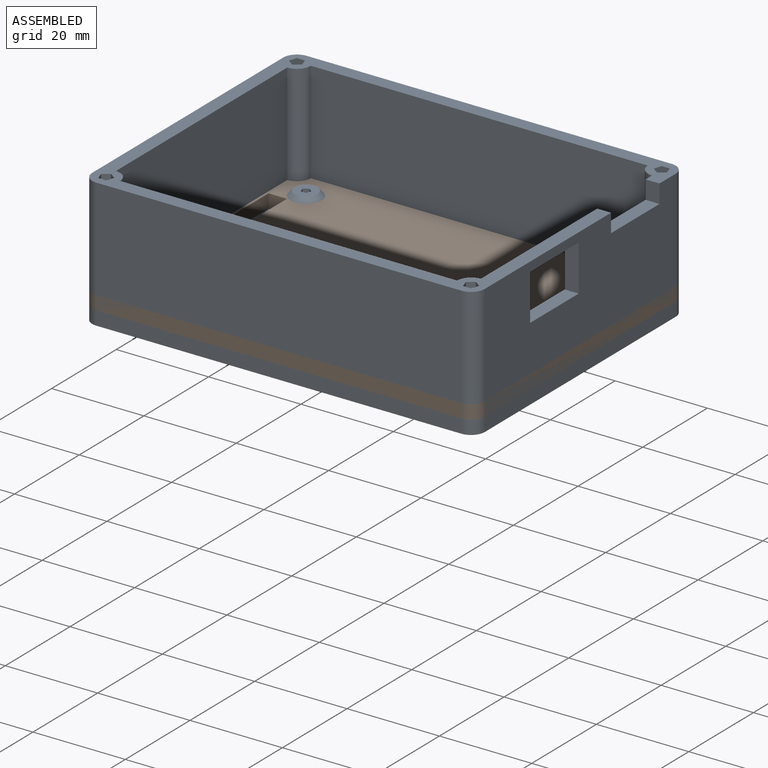
[diagram: assembled view]
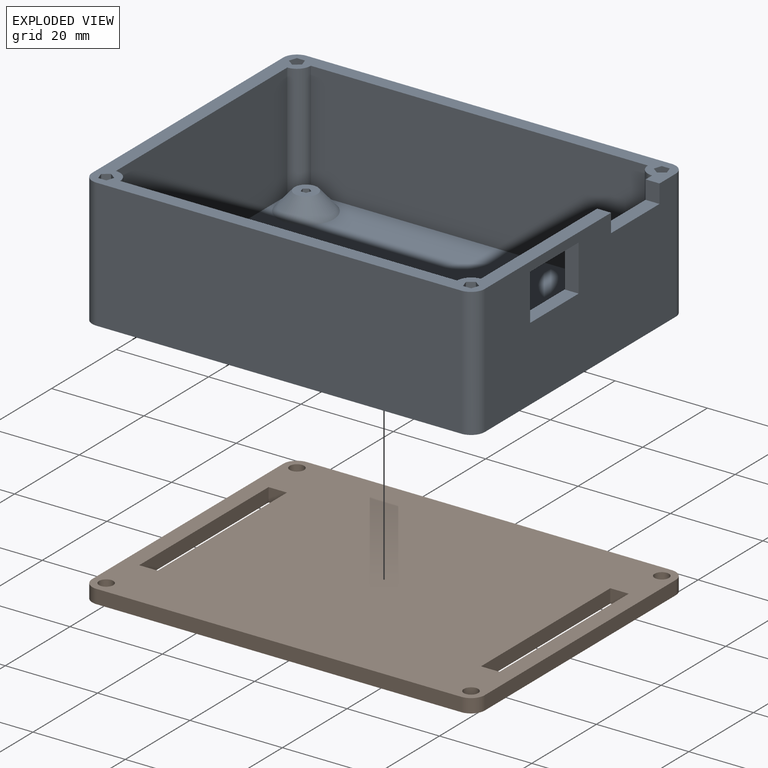
[diagram: exploded view]
GUIDED TOUR — FREECAD ASSEMBLY "boiler_monitor_case"

This assembly has 2 components, labeled P0..P1 below (a component is one placed body or linked part; the same part can appear more than once), held together by 0 modeled joints plus 1 derived contact edge. A joint is a constraint between two components; its type names the relative motion it leaves free:
  CONTACT — a derived adjacency edge — the two components touch in the source model (clearance under 2% of the assembly's diagonal); it is measured from the geometry, not a modeled constraint.
Axis/direction vectors are unit vectors and 'through' points are millimeter coordinates, both in the assembly's world frame.

MATES
  1. CONTACT "contact_0_1": P0 <-> P1, contact direction (0.000, 0.000, -1.000) through (42.50, 29.50, 0.00) mm (derived from contact, not a modeled constraint)

ASSEMBLY ORDER
  1. P0 — the base component [order verified]
  2. P1 [order verified]
Order-tag legend:
  [order verified] — this step's position reverses a verified removal order: the component was checked to insert without passing through the ones already placed.

Of the 2 components, 2 carry a construction recipe — the FreeCAD feature program (sketches with constraints, then the solid features that consume them) that regenerates the part from scratch, quoted from this document or from the linked companion document it references; the rest are supplied as boundary geometry only. The tour below walks the components in assembly order: each is shown spotlighted twice — in the assembled view, then in the exploded view, where a leader line traces a displaced component back to its assembled socket (components that stay in place when exploded have no leader line; saturated green if recipe-attached, orange if geometry-only; every other component desaturated gray) — followed by its recipe or geometry summary and the mates that hold it.
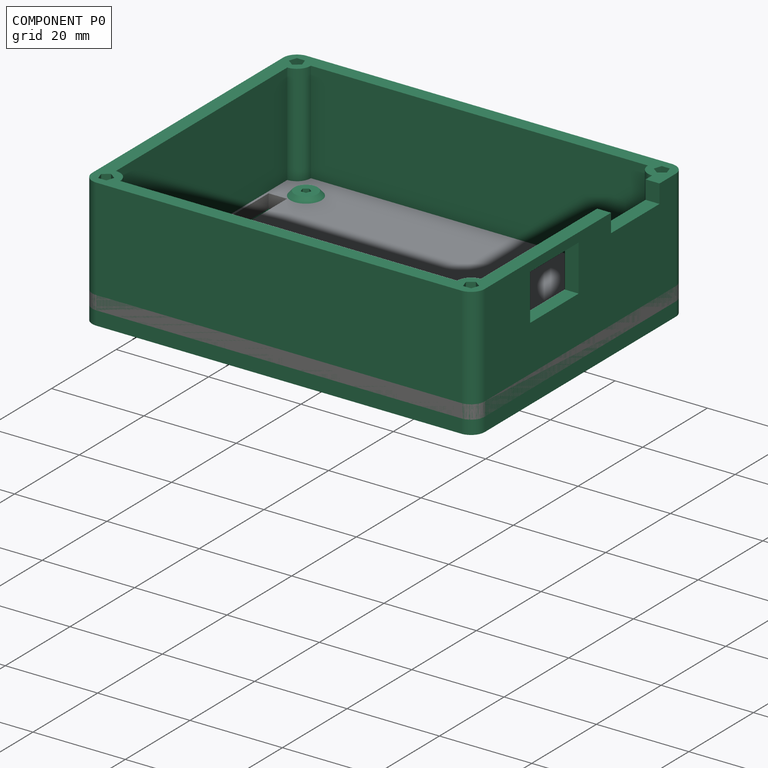
[diagram: component P0 — assembled]
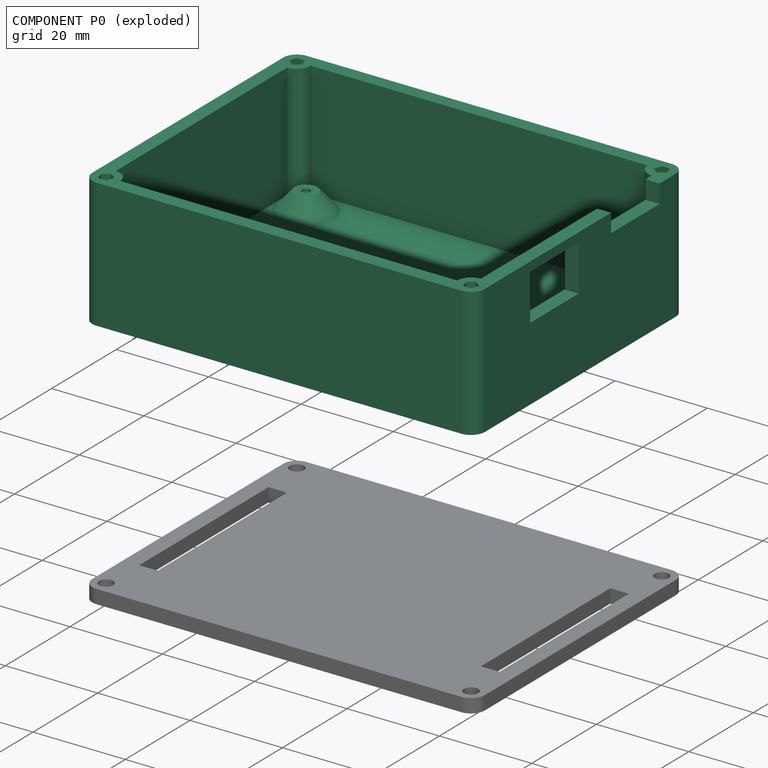
[diagram: component P0 — exploded]
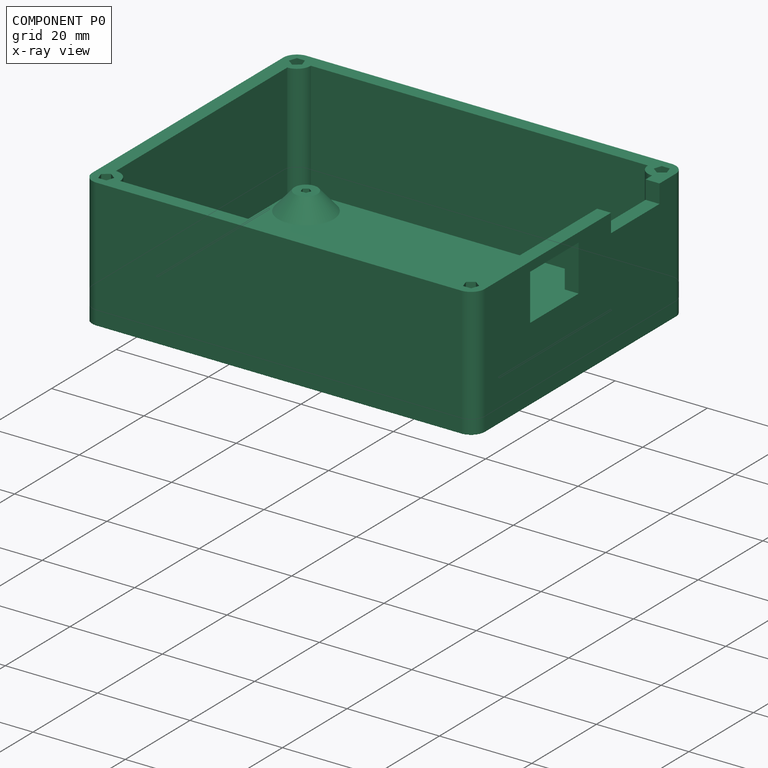
[diagram: component P0 — x-ray view]
COMPONENT P0 — recipe-attached ("Case", modeled in this document).
Held by: resting contact with P1 (derived edge).
Construction recipe (the document's own serialized feature program — sketch geometry with constraints, then the solid features built on it; lengths are millimeters unless a unit is written):

FEATURE [PartDesign::Plane] DatumPlane  label="Case_Plane_Bottom"
  AttachmentOffset = pos=(0,0,-3) rot=(0,0,1;0rad)
  Length = 99.8661
  MapMode = 5
  Placement = pos=(0,0,-3) rot=(0,0,1;0rad)
  ResizeMode = 0
  Support = -> [XY_Plane001]
  Width = 79.8661
FEATURE [Sketcher::SketchObject] Sketch  label="Case_S_Outer"
  FullyConstrained = true
  MapMode = 5
  Placement = pos=(0,0,-3) rot=(0,0,1;0rad)
  Support = -> [DatumPlane]
  sketch-geometry (8):
    g0: LineSegment StartX=-39.5 StartY=32.5 StartZ=0 EndX=39.5 EndY=32.5 EndZ=0
    g1: LineSegment StartX=42.5 StartY=29.5 StartZ=0 EndX=42.5 EndY=-29.5 EndZ=0
    g2: LineSegment StartX=39.5 StartY=-32.5 StartZ=0 EndX=-39.5 EndY=-32.5 EndZ=0
    g3: LineSegment StartX=-42.5 StartY=-29.5 StartZ=0 EndX=-42.5 EndY=29.5 EndZ=0
    g4: ArcOfCircle CenterX=39.5 CenterY=29.5 CenterZ=0 NormalX=0 NormalY=0 NormalZ=1 AngleXU=0 Radius=3 StartAngle=-1.8527e-12 EndAngle=1.5708
    g5: ArcOfCircle CenterX=-39.5 CenterY=29.5 CenterZ=0 NormalX=0 NormalY=0 NormalZ=1 AngleXU=0 Radius=3 StartAngle=1.5708 EndAngle=3.14159
    g6: ArcOfCircle CenterX=-39.5 CenterY=-29.5 CenterZ=0 NormalX=0 NormalY=0 NormalZ=1 AngleXU=0 Radius=3 StartAngle=3.14159 EndAngle=4.71239
    g7: ArcOfCircle CenterX=39.5 CenterY=-29.5 CenterZ=0 NormalX=0 NormalY=0 NormalZ=1 AngleXU=0 Radius=3 StartAngle=4.71239 EndAngle=6.28319
  constraints (17):
    c: Horizontal(g2)
    c: Vertical(g3)
    c: Tangent(g0,g4) = 1.5708
    c: Tangent(g1,g4) = 1.5708
    c: Tangent(g0,g5) = 1.5708
    c: Tangent(g3,g5) = 1.5708
    c: Tangent(g3,g6) = 1.5708
    c: Tangent(g2,g6) = 1.5708
    c: Tangent(g2,g7) = 1.5708
    c: Tangent(g1,g7) = 1.5708
    c: DistanceY(g2,g0) = 65
    c: DistanceX(g3,g1) = 85
    c: Equal(g5,g4)
    c: Symmetric(g5,g6,g-1)
    c: Symmetric(g5,g4,g-2)
    c: Radius(g7) = 3  'wall'
    c: Symmetric(g7,g4,g-1)
FEATURE [PartDesign::Plane] DatumPlane001  label="Case_Plane_Top"
  AttachmentOffset = pos=(0,0,25) rot=(0,0,1;0rad)
  Length = 99.8661
  MapMode = 5
  Placement = pos=(0,0,25) rot=(0,0,1;0rad)
  ResizeMode = 0
  Support = -> [XY_Plane001]
  Width = 79.8661
FEATURE [PartDesign::CoordinateSystem] LCS_0  label="Case_LCS_Top"
  AttacherType = Attacher::AttachEngine3D
  MapMode = 2
  Placement = pos=(0,0,25) rot=(0,0,1;0rad)
  Support = -> [DatumPlane001]
FEATURE [PartDesign::Pad] Pad  label="Case_Outer"
  Direction = (1,1,1)
  Length = 10
  Length2 = 100
  Placement = pos=(0,0,-3) rot=(0,0,1;0rad)
  Profile = -> Sketch
  Type = 3
  UpToFace = -> DatumPlane001 [Plane]
FEATURE [Sketcher::SketchObject] Sketch001  label="Case_S_Inner"
  FullyConstrained = true
  MapMode = 5
  Placement = pos=(0,0,25) rot=(0,0,1;0rad)
  Support = -> [DatumPlane001]
  expr: Constraints[23] = Sketch.Constraints.wall
  expr: Constraints[19] = Sketch.Constraints[11]
  expr: Constraints[18] = Sketch.Constraints[10]
  sketch-geometry (12):
    g0: LineSegment StartX=39.5 StartY=-29.5 StartZ=0 EndX=-39.5 EndY=-29.5 EndZ=0
    g1: LineSegment StartX=-39.5 StartY=-29.5 StartZ=0 EndX=-39.5 EndY=29.5 EndZ=0
    g2: LineSegment StartX=-39.5 StartY=29.5 StartZ=0 EndX=39.5 EndY=29.5 EndZ=0
    g3: LineSegment StartX=39.5 StartY=29.5 StartZ=0 EndX=39.5 EndY=-29.5 EndZ=0
    g4: LineSegment StartX=-39.5 StartY=32.5 StartZ=0 EndX=39.5 EndY=32.5 EndZ=0
    g5: LineSegment StartX=42.5 StartY=29.5 StartZ=0 EndX=42.5 EndY=-29.5 EndZ=0
    g6: LineSegment StartX=39.5 StartY=-32.5 StartZ=0 EndX=-39.5 EndY=-32.5 EndZ=0
    g7: LineSegment StartX=-42.5 StartY=-29.5 StartZ=0 EndX=-42.5 EndY=29.5 EndZ=0
    g8: ArcOfCircle CenterX=39.5 CenterY=29.5 CenterZ=0 NormalX=0 NormalY=0 NormalZ=1 AngleXU=0 Radius=3 StartAngle=0 EndAngle=1.5708
    g9: ArcOfCircle CenterX=-39.5 CenterY=29.5 CenterZ=0 NormalX=0 NormalY=0 NormalZ=1 AngleXU=0 Radius=3 StartAngle=1.5708 EndAngle=3.14159
    g10: ArcOfCircle CenterX=-39.5 CenterY=-29.5 CenterZ=0 NormalX=0 NormalY=0 NormalZ=1 AngleXU=0 Radius=3 StartAngle=3.14159 EndAngle=4.71239
    g11: ArcOfCircle CenterX=39.5 CenterY=-29.5 CenterZ=0 NormalX=0 NormalY=0 NormalZ=1 AngleXU=0 Radius=3 StartAngle=4.71239 EndAngle=6.28319
  constraints (26):
    c: Coincident(g0,g1)
    c: Coincident(g1,g2)
    c: Coincident(g2,g3)
    c: Coincident(g3,g0)
    c: Horizontal(g2)
    c: Vertical(g3)
    c: Symmetric(g0,g0,g-2)
    c: Symmetric(g0,g1,g-1)
    c: Horizontal(g6)
    c: Vertical(g7)
    c: Tangent(g4,g8) = 1.5708
    c: Tangent(g5,g8) = 1.5708
    c: Tangent(g4,g9) = 1.5708
    c: Tangent(g7,g9) = 1.5708
    c: Tangent(g7,g10) = 1.5708
    c: Tangent(g6,g10) = 1.5708
    c: Tangent(g6,g11) = 1.5708
    c: Tangent(g5,g11) = 1.5708
    c: DistanceY(g6,g4) = 65
    c: DistanceX(g7,g5) = 85
    c: Equal(g9,g8)
    c: Symmetric(g9,g10,g-1)
    c: Symmetric(g9,g8,g-2)
    c: Radius(g11) = 3
    c: Symmetric(g11,g8,g-1)
    c: Coincident(g1,g9)
FEATURE [PartDesign::Pocket] Pocket  label="Case_Inner"
  BaseFeature = -> Pad
  Length = 0
  Length2 = 100
  Placement = pos=(0,0,-3) rot=(0,0,1;0rad)
  Profile = -> Sketch001
  Type = 3
  UpToFace = -> XY_Plane001
FEATURE [Sketcher::SketchObject] Sketch002  label="Case_S_MountSupports"
  FullyConstrained = true
  MapMode = 5
  Placement = pos=(0,0,25) rot=(0,0,1;0rad)
  Support = -> [DatumPlane001]
  expr: Constraints[23] = Sketch001.Constraints[23]
  expr: Constraints[19] = Sketch001.Constraints[19]
  expr: Constraints[18] = Sketch001.Constraints[18]
  sketch-geometry (16):
    g0: LineSegment StartX=39.5 StartY=-29.5 StartZ=0 EndX=-39.5 EndY=-29.5 EndZ=0
    g1: LineSegment StartX=-39.5 StartY=-29.5 StartZ=0 EndX=-39.5 EndY=29.5 EndZ=0
    g2: LineSegment StartX=-39.5 StartY=29.5 StartZ=0 EndX=39.5 EndY=29.5 EndZ=0
    g3: LineSegment StartX=39.5 StartY=29.5 StartZ=0 EndX=39.5 EndY=-29.5 EndZ=0
    g4: LineSegment StartX=-39.5 StartY=32.5 StartZ=0 EndX=39.5 EndY=32.5 EndZ=0
    g5: LineSegment StartX=42.5 StartY=29.5 StartZ=0 EndX=42.5 EndY=-29.5 EndZ=0
    g6: LineSegment StartX=39.5 StartY=-32.5 StartZ=0 EndX=-39.5 EndY=-32.5 EndZ=0
    g7: LineSegment StartX=-42.5 StartY=-29.5 StartZ=0 EndX=-42.5 EndY=29.5 EndZ=0
    g8: ArcOfCircle CenterX=39.5 CenterY=29.5 CenterZ=0 NormalX=0 NormalY=0 NormalZ=1 AngleXU=0 Radius=3 StartAngle=0 EndAngle=1.5708
    g9: ArcOfCircle CenterX=-39.5 CenterY=29.5 CenterZ=0 NormalX=0 NormalY=0 NormalZ=1 AngleXU=0 Radius=3 StartAngle=1.5708 EndAngle=3.14159
    g10: ArcOfCircle CenterX=-39.5 CenterY=-29.5 CenterZ=0 NormalX=0 NormalY=0 NormalZ=1 AngleXU=0 Radius=3 StartAngle=3.14159 EndAngle=4.71239
    g11: ArcOfCircle CenterX=39.5 CenterY=-29.5 CenterZ=0 NormalX=0 NormalY=0 NormalZ=1 AngleXU=0 Radius=3 StartAngle=4.71239 EndAngle=6.28319
    g12: Circle CenterX=-39.5 CenterY=29.5 CenterZ=0 NormalX=0 NormalY=0 NormalZ=1 AngleXU=0 Radius=3
    g13: Circle CenterX=39.5 CenterY=29.5 CenterZ=0 NormalX=0 NormalY=0 NormalZ=1 AngleXU=0 Radius=3
    g14: Circle CenterX=39.5 CenterY=-29.5 CenterZ=0 NormalX=0 NormalY=0 NormalZ=1 AngleXU=0 Radius=3
    g15: Circle CenterX=-39.5 CenterY=-29.5 CenterZ=0 NormalX=0 NormalY=0 NormalZ=1 AngleXU=0 Radius=3
  constraints (34):
    c: Coincident(g0,g1)
    c: Coincident(g1,g2)
    c: Coincident(g2,g3)
    c: Coincident(g3,g0)
    c: Horizontal(g2)
    c: Vertical(g3)
    c: Symmetric(g0,g0,g-2)
    c: Symmetric(g0,g1,g-1)
    c: Horizontal(g6)
    c: Vertical(g7)
    c: Tangent(g4,g8) = 1.5708
    c: Tangent(g5,g8) = 1.5708
    c: Tangent(g4,g9) = 1.5708
    c: Tangent(g7,g9) = 1.5708
    c: Tangent(g7,g10) = 1.5708
    c: Tangent(g6,g10) = 1.5708
    c: Tangent(g6,g11) = 1.5708
    c: Tangent(g5,g11) = 1.5708
    c: DistanceY(g6,g4) = 65
    c: DistanceX(g7,g5) = 85
    c: Equal(g9,g8)
    c: Symmetric(g9,g10,g-1)
    c: Symmetric(g9,g8,g-2)
    c: Radius(g11) = 3
    c: Symmetric(g11,g8,g-1)
    c: Coincident(g1,g9)
    c: Coincident(g12,g1)
    c: PointOnObject(g4,g12)
    c: Coincident(g13,g2)
    c: PointOnObject(g4,g13)
    c: Coincident(g14,g0)
    c: PointOnObject(g6,g14)
    c: Coincident(g15,g0)
    c: PointOnObject(g6,g15)
FEATURE [PartDesign::Pad] Pad001  label="Case_MountSupports"
  BaseFeature = -> Pocket
  Direction = (1,1,1)
  Length = 10
  Length2 = 100
  Placement = pos=(0,0,-3) rot=(0,0,1;0rad)
  Profile = -> Sketch002
  Type = 3
  UpToFace = -> XY_Plane001
FEATURE [Sketcher::SketchObject] Sketch003  label="Case_S_Mount"
  FullyConstrained = true
  MapMode = 5
  Placement = pos=(0,0,25) rot=(0,0,1;0rad)
  Support = -> [DatumPlane001]
  expr: Constraints[23] = Sketch001.Constraints[23]
  expr: Constraints[19] = Sketch001.Constraints[19]
  expr: Constraints[18] = Sketch001.Constraints[18]
  sketch-geometry (36):
    g0: LineSegment StartX=39.5 StartY=-29.5 StartZ=0 EndX=-39.5 EndY=-29.5 EndZ=0
    g1: LineSegment StartX=-39.5 StartY=-29.5 StartZ=0 EndX=-39.5 EndY=29.5 EndZ=0
    g2: LineSegment StartX=-39.5 StartY=29.5 StartZ=0 EndX=39.5 EndY=29.5 EndZ=0
    g3: LineSegment StartX=39.5 StartY=29.5 StartZ=0 EndX=39.5 EndY=-29.5 EndZ=0
    g4: LineSegment StartX=-39.5 StartY=32.5 StartZ=0 EndX=39.5 EndY=32.5 EndZ=0
    g5: LineSegment StartX=42.5 StartY=29.5 StartZ=0 EndX=42.5 EndY=-29.5 EndZ=0
    g6: LineSegment StartX=39.5 StartY=-32.5 StartZ=0 EndX=-39.5 EndY=-32.5 EndZ=0
    g7: LineSegment StartX=-42.5 StartY=-29.5 StartZ=0 EndX=-42.5 EndY=29.5 EndZ=0
    g8: ArcOfCircle CenterX=39.5 CenterY=29.5 CenterZ=0 NormalX=0 NormalY=0 NormalZ=1 AngleXU=0 Radius=3 StartAngle=-9e-16 EndAngle=1.5708
    g9: ArcOfCircle CenterX=-39.5 CenterY=29.5 CenterZ=0 NormalX=0 NormalY=0 NormalZ=1 AngleXU=0 Radius=3 StartAngle=1.5708 EndAngle=3.14159
    g10: ArcOfCircle CenterX=-39.5 CenterY=-29.5 CenterZ=0 NormalX=0 NormalY=0 NormalZ=1 AngleXU=0 Radius=3 StartAngle=3.14159 EndAngle=4.71239
    g11: ArcOfCircle CenterX=39.5 CenterY=-29.5 CenterZ=0 NormalX=0 NormalY=0 NormalZ=1 AngleXU=0 Radius=3 StartAngle=4.71239 EndAngle=6.28319
    g12: LineSegment StartX=-38.0734 StartY=29.0365 StartZ=0 EndX=-38.6183 EndY=30.7135 EndZ=0
    g13: LineSegment StartX=-38.6183 StartY=30.7135 StartZ=0 EndX=-40.3817 EndY=30.7135 EndZ=0
    g14: LineSegment StartX=-40.3817 StartY=30.7135 StartZ=0 EndX=-40.9266 EndY=29.0365 EndZ=0
    g15: LineSegment StartX=-40.9266 StartY=29.0365 StartZ=0 EndX=-39.5 EndY=28 EndZ=0
    g16: LineSegment StartX=-39.5 StartY=28 StartZ=0 EndX=-38.0734 EndY=29.0365 EndZ=0
    g17: Circle CenterX=-39.5 CenterY=29.5 CenterZ=0 NormalX=0 NormalY=0 NormalZ=1 AngleXU=0 Radius=1.5
    g18: LineSegment StartX=38.0734 StartY=29.0365 StartZ=0 EndX=39.5 EndY=28 EndZ=0
    g19: LineSegment StartX=39.5 StartY=28 StartZ=0 EndX=40.9266 EndY=29.0365 EndZ=0
    g20: LineSegment StartX=40.9266 StartY=29.0365 StartZ=0 EndX=40.3817 EndY=30.7135 EndZ=0
    g21: LineSegment StartX=40.3817 StartY=30.7135 StartZ=0 EndX=38.6183 EndY=30.7135 EndZ=0
    g22: LineSegment StartX=38.6183 StartY=30.7135 StartZ=0 EndX=38.0734 EndY=29.0365 EndZ=0
    g23: Circle CenterX=39.5 CenterY=29.5 CenterZ=0 NormalX=0 NormalY=0 NormalZ=1 AngleXU=0 Radius=1.5
    g24: LineSegment StartX=40.9266 StartY=-29.0365 StartZ=0 EndX=39.5 EndY=-28 EndZ=0
    g25: LineSegment StartX=39.5 StartY=-28 StartZ=0 EndX=38.0734 EndY=-29.0365 EndZ=0
    g26: LineSegment StartX=38.0734 StartY=-29.0365 StartZ=0 EndX=38.6183 EndY=-30.7135 EndZ=0
    g27: LineSegment StartX=38.6183 StartY=-30.7135 StartZ=0 EndX=40.3817 EndY=-30.7135 EndZ=0
    g28: LineSegment StartX=40.3817 StartY=-30.7135 StartZ=0 EndX=40.9266 EndY=-29.0365 EndZ=0
    g29: Circle CenterX=39.5 CenterY=-29.5 CenterZ=0 NormalX=0 NormalY=0 NormalZ=1 AngleXU=0 Radius=1.5
    g30: LineSegment StartX=-39.5 StartY=-28 StartZ=0 EndX=-40.9266 EndY=-29.0365 EndZ=0
    g31: LineSegment StartX=-40.9266 StartY=-29.0365 StartZ=0 EndX=-40.3817 EndY=-30.7135 EndZ=0
    g32: LineSegment StartX=-40.3817 StartY=-30.7135 StartZ=0 EndX=-38.6183 EndY=-30.7135 EndZ=0
    g33: LineSegment StartX=-38.6183 StartY=-30.7135 StartZ=0 EndX=-38.0734 EndY=-29.0365 EndZ=0
    g34: LineSegment StartX=-38.0734 StartY=-29.0365 StartZ=0 EndX=-39.5 EndY=-28 EndZ=0
    g35: Circle CenterX=-39.5 CenterY=-29.5 CenterZ=0 NormalX=0 NormalY=0 NormalZ=1 AngleXU=0 Radius=1.5
  constraints (82):
    c: Coincident(g0,g1)
    c: Coincident(g1,g2)
    c: Coincident(g2,g3)
    c: Coincident(g3,g0)
    c: Horizontal(g2)
    c: Vertical(g3)
    c: Symmetric(g0,g0,g-2)
    c: Symmetric(g0,g1,g-1)
    c: Horizontal(g6)
    c: Vertical(g7)
    c: Tangent(g4,g8) = 1.5708
    c: Tangent(g5,g8) = 1.5708
    c: Tangent(g4,g9) = 1.5708
    c: Tangent(g7,g9) = 1.5708
    c: Tangent(g7,g10) = 1.5708
    c: Tangent(g6,g10) = 1.5708
    c: Tangent(g6,g11) = 1.5708
    c: Tangent(g5,g11) = 1.5708
    c: DistanceY(g6,g4) = 65
    c: DistanceX(g7,g5) = 85
    c: Equal(g9,g8)
    c: Symmetric(g9,g10,g-1)
    c: Symmetric(g9,g8,g-2)
    c: Radius(g11) = 3
    c: Symmetric(g11,g8,g-1)
    c: Coincident(g1,g9)
    c: Coincident(g12,g13)
    c: Coincident(g13,g14)
    c: Coincident(g14,g15)
    c: Coincident(g15,g16)
    c: Coincident(g16,g12)
    c: Equal(g12, g13-g16) x4
    c: PointOnObject(g12,g17)
    c: PointOnObject(g13,g17)
    c: PointOnObject(g14,g17)
    c: PointOnObject(g15,g17)
    c: PointOnObject(g16,g17)
    c: Coincident(g17,g1)
    c: Coincident(g18,g19)
    c: Coincident(g19,g20)
    c: Coincident(g20,g21)
    c: Coincident(g21,g22)
    c: Coincident(g22,g18)
    c: Equal(g18, g19-g22) x4
    c: PointOnObject(g18,g23)
    c: PointOnObject(g19,g23)
    c: PointOnObject(g20,g23)
    c: PointOnObject(g21,g23)
    c: PointOnObject(g22,g23)
    c: Coincident(g23,g2)
    c: Coincident(g24,g25)
    c: Coincident(g25,g26)
    c: Coincident(g26,g27)
    c: Coincident(g27,g28)
    c: Coincident(g28,g24)
    c: Equal(g24, g25-g28) x4
    c: PointOnObject(g24,g29)
    c: PointOnObject(g25,g29)
    c: PointOnObject(g26,g29)
    c: PointOnObject(g27,g29)
    c: PointOnObject(g28,g29)
    c: Coincident(g29,g0)
    c: Coincident(g30,g31)
    c: Coincident(g31,g32)
    c: Coincident(g32,g33)
    c: Coincident(g33,g34)
    c: Coincident(g34,g30)
    c: Equal(g30, g31-g34) x4
    c: PointOnObject(g30,g35)
    c: PointOnObject(g31,g35)
    c: PointOnObject(g32,g35)
    c: PointOnObject(g33,g35)
    c: PointOnObject(g34,g35)
    c: Coincident(g35,g0)
    c: Equal(g17,g23)
    c: Equal(g23,g29)
    c: Equal(g29,g35)
    c: Diameter(g35) = 3
    c: PointOnObject(g15,g1)
    c: PointOnObject(g30,g1)
    c: PointOnObject(g24,g3)
    c: PointOnObject(g18,g3)
FEATURE [PartDesign::Pocket] Pocket001  label="Case_Mount"
  BaseFeature = -> Pad001
  Length = 0
  Length2 = 100
  Placement = pos=(0,0,-3) rot=(0,0,1;0rad)
  Profile = -> Sketch003
  Type = 3
  UpToFace = -> XY_Plane001
FEATURE [PartDesign::Plane] DatumPlane002  label="Case_Plane_PcbStandoffs"
  AttachmentOffset = pos=(0,0,4) rot=(0,0,1;0rad)
  Length = 99.8661
  MapMode = 5
  Placement = pos=(0,0,4) rot=(0,0,1;0rad)
  ResizeMode = 0
  Support = -> [XY_Plane001]
  Width = 79.8661
FEATURE [Sketcher::SketchObject] Sketch005  label="Case_S_PcbStandoffUpper"
  AttachmentOffset = pos=(-33,-23,0) rot=(0,0,1;0rad)
  FullyConstrained = true
  MapMode = 5
  Placement = pos=(-33,-23,4) rot=(0,0,1;0rad)
  Support = -> [DatumPlane002]
  sketch-geometry (1):
    g0: Circle CenterX=0 CenterY=0 CenterZ=0 NormalX=0 NormalY=0 NormalZ=1 AngleXU=0 Radius=2.5
  constraints (2):
    c: Coincident(g0,g-1)
    c: Diameter(g0) = 5
FEATURE [Sketcher::SketchObject] Sketch006  label="Case_S_PcbStandoffLower"
  AttachmentOffset = pos=(-33,-23,0) rot=(0,0,1;0rad)
  FullyConstrained = true
  MapMode = 5
  Placement = pos=(-33,-23,0) rot=(0,0,1;0rad)
  Support = -> [XY_Plane001]
  sketch-geometry (1):
    g0: Circle CenterX=0 CenterY=0 CenterZ=0 NormalX=0 NormalY=0 NormalZ=1 AngleXU=0 Radius=6
  constraints (2):
    c: Coincident(g0,g-1)
    c: Diameter(g0) = 12
FEATURE [PartDesign::AdditiveLoft] AdditiveLoft  label="Case_PcbStandoff"
  BaseFeature = -> Pocket001
  Closed = false
  Placement = pos=(0,0,-3) rot=(0,0,1;0rad)
  Profile = -> Sketch005
  Ruled = false
  Sections = -> [Sketch006]
FEATURE [PartDesign::LinearPattern] LinearPattern  label="Case_Trans_PcbStandoffsX"
  Direction = -> Sketch005 [H_Axis]
  Length = 66
  Occurrences = 2
  Placement = pos=(0,0,-3) rot=(0,0,1;0rad)
FEATURE [PartDesign::LinearPattern] LinearPattern001  label="Case_Trans_PcbStandoffsY"
  Direction = -> Sketch005 [V_Axis]
  Length = 46
  Occurrences = 2
  Placement = pos=(0,0,-3) rot=(0,0,1;0rad)
FEATURE [PartDesign::MultiTransform] MultiTransform  label="Case_PcbStandoffs"
  BaseFeature = -> AdditiveLoft
  Originals = -> [AdditiveLoft]
  Placement = pos=(0,0,-3) rot=(0,0,1;0rad)
  Transformations = -> [LinearPattern,LinearPattern001]
FEATURE [Sketcher::SketchObject] Sketch007  label="Case_S_PcbMountingHoles"
  ExternalGeometry = -> [MultiTransform]
  FullyConstrained = true
  MapMode = 5
  Placement = pos=(0,0,4) rot=(0,0,1;0rad)
  Support = -> [DatumPlane002]
  sketch-geometry (24):
    g0: LineSegment StartX=-33.5878 StartY=22.191 StartZ=0 EndX=-32.4122 EndY=22.191 EndZ=0
    g1: LineSegment StartX=-32.4122 StartY=22.191 StartZ=0 EndX=-32.0489 EndY=23.309 EndZ=0
    g2: LineSegment StartX=-32.0489 StartY=23.309 StartZ=0 EndX=-33 EndY=24 EndZ=0
    g3: LineSegment StartX=-33 StartY=24 StartZ=0 EndX=-33.9511 EndY=23.309 EndZ=0
    g4: LineSegment StartX=-33.9511 StartY=23.309 StartZ=0 EndX=-33.5878 EndY=22.191 EndZ=0
    g5: Circle CenterX=-33 CenterY=23 CenterZ=0 NormalX=0 NormalY=0 NormalZ=1 AngleXU=0 Radius=1
    g6: LineSegment StartX=33 StartY=24 StartZ=0 EndX=32.0489 EndY=23.309 EndZ=0
    g7: LineSegment StartX=32.0489 StartY=23.309 StartZ=0 EndX=32.4122 EndY=22.191 EndZ=0
    g8: LineSegment StartX=32.4122 StartY=22.191 StartZ=0 EndX=33.5878 EndY=22.191 EndZ=0
    g9: LineSegment StartX=33.5878 StartY=22.191 StartZ=0 EndX=33.9511 EndY=23.309 EndZ=0
    g10: LineSegment StartX=33.9511 StartY=23.309 StartZ=0 EndX=33 EndY=24 EndZ=0
    g11: Circle CenterX=33 CenterY=23 CenterZ=0 NormalX=0 NormalY=0 NormalZ=1 AngleXU=0 Radius=1
    g12: LineSegment StartX=-33.9511 StartY=-22.691 StartZ=0 EndX=-33.5878 EndY=-23.809 EndZ=0
    g13: LineSegment StartX=-33.5878 StartY=-23.809 StartZ=0 EndX=-32.4122 EndY=-23.809 EndZ=0
    g14: LineSegment StartX=-32.4122 StartY=-23.809 StartZ=0 EndX=-32.0489 EndY=-22.691 EndZ=0
    g15: LineSegment StartX=-32.0489 StartY=-22.691 StartZ=0 EndX=-33 EndY=-22 EndZ=0
    g16: LineSegment StartX=-33 StartY=-22 StartZ=0 EndX=-33.9511 EndY=-22.691 EndZ=0
    g17: Circle CenterX=-33 CenterY=-23 CenterZ=0 NormalX=0 NormalY=0 NormalZ=1 AngleXU=0 Radius=1
    g18: LineSegment StartX=33.9511 StartY=-22.691 StartZ=0 EndX=33 EndY=-22 EndZ=0
    g19: LineSegment StartX=33 StartY=-22 StartZ=0 EndX=32.0489 EndY=-22.691 EndZ=0
    g20: LineSegment StartX=32.0489 StartY=-22.691 StartZ=0 EndX=32.4122 EndY=-23.809 EndZ=0
    g21: LineSegment StartX=32.4122 StartY=-23.809 StartZ=0 EndX=33.5878 EndY=-23.809 EndZ=0
    g22: LineSegment StartX=33.5878 StartY=-23.809 StartZ=0 EndX=33.9511 EndY=-22.691 EndZ=0
    g23: Circle CenterX=33 CenterY=-23 CenterZ=0 NormalX=0 NormalY=0 NormalZ=1 AngleXU=0 Radius=1
  constraints (56):
    c: Coincident(g0,g1)
    c: Coincident(g1,g2)
    c: Coincident(g2,g3)
    c: Coincident(g3,g4)
    c: Coincident(g4,g0)
    c: Equal(g0, g1-g4) x4
    c: PointOnObject(g0,g5)
    c: PointOnObject(g1,g5)
    c: PointOnObject(g2,g5)
    c: PointOnObject(g3,g5)
    c: PointOnObject(g4,g5)
    c: Coincident(g5,g-3)
    c: Coincident(g6,g7)
    c: Coincident(g7,g8)
    c: Coincident(g8,g9)
    c: Coincident(g9,g10)
    c: Coincident(g10,g6)
    c: Equal(g6, g7-g10) x4
    c: PointOnObject(g6,g11)
    c: PointOnObject(g7,g11)
    c: PointOnObject(g8,g11)
    c: PointOnObject(g9,g11)
    c: PointOnObject(g10,g11)
    c: Coincident(g11,g-4)
    c: Coincident(g12,g13)
    c: Coincident(g13,g14)
    c: Coincident(g14,g15)
    c: Coincident(g15,g16)
    c: Coincident(g16,g12)
    c: Equal(g12, g13-g16) x4
    c: PointOnObject(g12,g17)
    c: PointOnObject(g13,g17)
    c: PointOnObject(g14,g17)
    c: PointOnObject(g15,g17)
    c: PointOnObject(g16,g17)
    c: Coincident(g17,g-6)
    c: Coincident(g18,g19)
    c: Coincident(g19,g20)
    c: Coincident(g20,g21)
    c: Coincident(g21,g22)
    c: Coincident(g22,g18)
    c: Equal(g18, g19-g22) x4
    c: PointOnObject(g18,g23)
    c: PointOnObject(g19,g23)
    c: PointOnObject(g20,g23)
    c: PointOnObject(g21,g23)
    c: PointOnObject(g22,g23)
    c: Coincident(g23,g-5)
    c: Diameter(g17) = 2
    c: Equal(g17,g5)
    c: Equal(g5,g11)
    c: Equal(g11,g23)
    c: Horizontal(g0)
    c: Horizontal(g8)
    c: Horizontal(g21)
    c: Horizontal(g13)
FEATURE [PartDesign::Pocket] Pocket002  label="Case_PcbMountingHoles"
  BaseFeature = -> MultiTransform
  Length = 6
  Length2 = 100
  Placement = pos=(0,0,-3) rot=(0,0,1;0rad)
  Profile = -> Sketch007
  Type = 0
FEATURE [Sketcher::SketchObject] Sketch008  label="Case_S_CableCutouts"
  ExternalGeometry = -> [Pocket002,DatumPlane002]
  FullyConstrained = true
  MapMode = 5
  Placement = pos=(42.5,-2.8866e-12,-3) rot=(0.57735,0.57735,0.57735;2.0944rad)
  Support = -> [Pocket002]
  expr: Constraints[30] = <<Case_Trans_PcbStandoffsY>>.Length / 2 - 15mm
  sketch-geometry (11):
    g0: LineSegment StartX=-15.5 StartY=26 StartZ=0 EndX=-0.5 EndY=26 EndZ=0
    g1: LineSegment StartX=-0.5 StartY=26 StartZ=0 EndX=-0.5 EndY=16 EndZ=0
    g2: LineSegment StartX=-0.5 StartY=16 StartZ=0 EndX=-15.5 EndY=16 EndZ=0
    g3: LineSegment StartX=-15.5 StartY=16 StartZ=0 EndX=-15.5 EndY=26 EndZ=0
    g4: LineSegment StartX=9.5 StartY=28 StartZ=0 EndX=24.5 EndY=28 EndZ=0
    g5: LineSegment StartX=24.5 StartY=28 StartZ=0 EndX=24.5 EndY=24 EndZ=0
    g6: LineSegment StartX=24.5 StartY=24 StartZ=0 EndX=9.5 EndY=24 EndZ=0
    g7: LineSegment StartX=9.5 StartY=24 StartZ=0 EndX=9.5 EndY=28 EndZ=0
    g8: LineSegment StartX=-15.5 StartY=16 StartZ=0 EndX=-15.5 EndY=7 EndZ=0
    g9: GeomPoint X=-8 Y=26 Z=0
    g10: LineSegment StartX=-8 StartY=26 StartZ=0 EndX=0 EndY=26 EndZ=0
  constraints (31):
    c: Coincident(g0,g1)
    c: Coincident(g1,g2)
    c: Coincident(g2,g3)
    c: Coincident(g3,g0)
    c: Horizontal(g0)
    c: Horizontal(g2)
    c: Vertical(g1)
    c: Vertical(g3)
    c: DistanceX(g0,g0) = 15
    c: DistanceY(g3,g3) = 10
    c: Coincident(g4,g5)
    c: Coincident(g5,g6)
    c: Coincident(g6,g7)
    c: Coincident(g7,g4)
    c: Horizontal(g4)
    c: Horizontal(g6)
    c: Vertical(g5)
    c: Vertical(g7)
    c: PointOnObject(g4,g-3)
    c: DistanceY(g7,g7) = 4
    c: DistanceX(g6,g6) = 15
    c: DistanceX(g4,g-3) = 5
    c: Coincident(g8,g2)
    c: PointOnObject(g8,g-4)
    c: Vertical(g8)
    c: DistanceY(g8,g8) = 9
    c: Symmetric(g0,g0,g9)
    c: Coincident(g10,g9)
    c: PointOnObject(g10,g-2)
    c: Horizontal(g10)
    c: DistanceX(g10,g10) = 8
FEATURE [PartDesign::Pocket] Pocket003  label="Case_CableCutouts"
  BaseFeature = -> Pocket002
  Length = 5
  Length2 = 100
  Placement = pos=(0,0,-3) rot=(0,0,1;0rad)
  Profile = -> Sketch008
  Type = 2
FEATURE [PartDesign::Body] Case
  Group = -> [LCS_0,Sketch,DatumPlane,DatumPlane001,Pad,Sketch001,Pocket,Sketch002,Pad001,Sketch003,Pocket001,DatumPlane002,Sketch005,Sketch006,AdditiveLoft,MultiTransform,LinearPattern,LinearPattern001,Sketch007,Pocket002,Sketch008,Pocket003]
  Origin = -> Origin001
  Tip = -> Pocket003
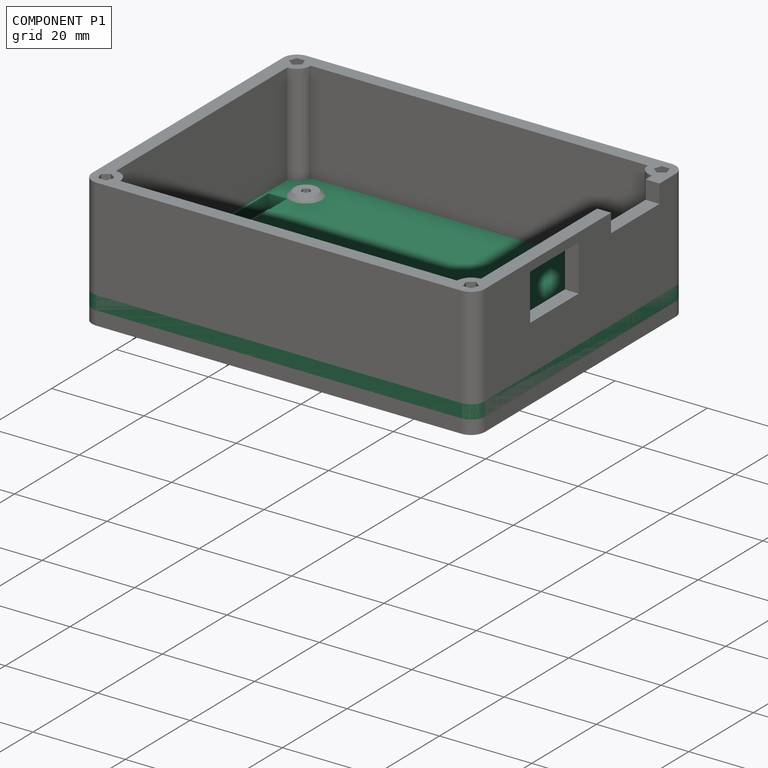
[diagram: component P1 — assembled]
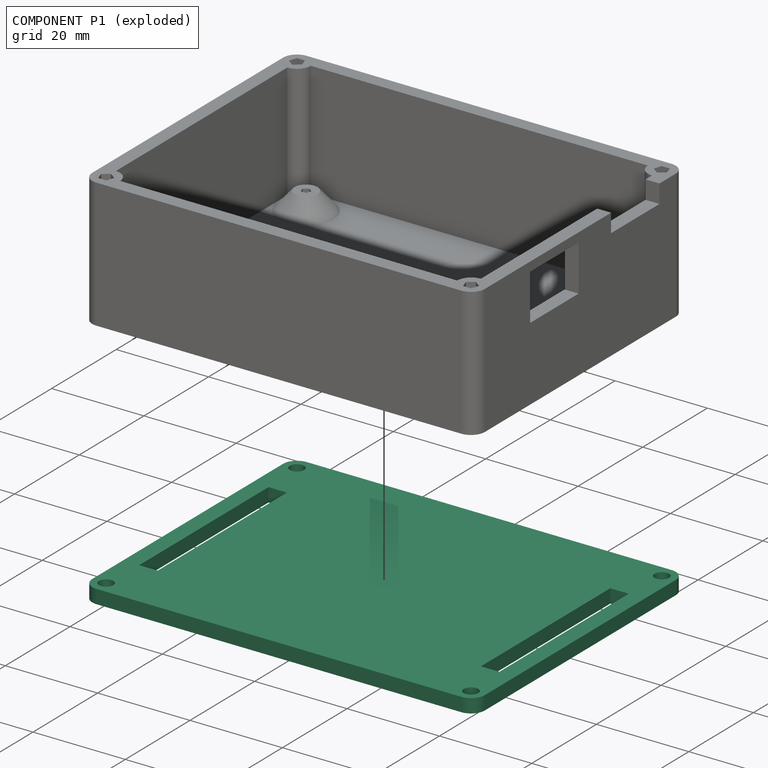
[diagram: component P1 — exploded]
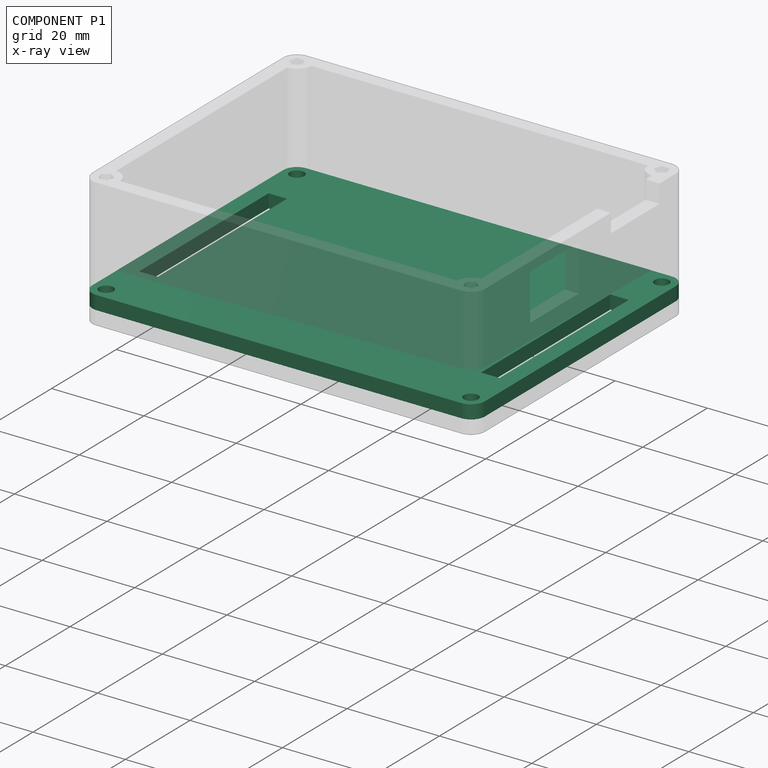
[diagram: component P1 — x-ray view]
COMPONENT P1 — recipe-attached ("Lid", modeled in this document).
Held by: resting contact with P0 (derived edge).
Construction recipe (the document's own serialized feature program — sketch geometry with constraints, then the solid features built on it; lengths are millimeters unless a unit is written):

FEATURE [PartDesign::CoordinateSystem] LCS_0001  label="Lid_LCS"
  AttacherType = Attacher::AttachEngine3D
  MapMode = 2
  Support = -> [X_Axis002]
FEATURE [Sketcher::SketchObject] Sketch004  label="Lid_S_Panel"
  FullyConstrained = true
  MapMode = 5
  Support = -> [XY_Plane002]
  expr: Constraints[10] = Sketch.Constraints[10]
  expr: Constraints[11] = Sketch.Constraints[11]
  expr: .Constraints.wall = Sketch.Constraints[15]
  sketch-geometry (12):
    g0: LineSegment StartX=-39.5 StartY=32.5 StartZ=0 EndX=39.5 EndY=32.5 EndZ=0
    g1: LineSegment StartX=42.5 StartY=29.5 StartZ=0 EndX=42.5 EndY=-29.5 EndZ=0
    g2: LineSegment StartX=39.5 StartY=-32.5 StartZ=0 EndX=-39.5 EndY=-32.5 EndZ=0
    g3: LineSegment StartX=-42.5 StartY=-29.5 StartZ=0 EndX=-42.5 EndY=29.5 EndZ=0
    g4: ArcOfCircle CenterX=39.5 CenterY=29.5 CenterZ=0 NormalX=0 NormalY=0 NormalZ=1 AngleXU=0 Radius=3 StartAngle=-9e-16 EndAngle=1.5708
    g5: ArcOfCircle CenterX=-39.5 CenterY=29.5 CenterZ=0 NormalX=0 NormalY=0 NormalZ=1 AngleXU=0 Radius=3 StartAngle=1.5708 EndAngle=3.14159
    g6: ArcOfCircle CenterX=-39.5 CenterY=-29.5 CenterZ=0 NormalX=0 NormalY=0 NormalZ=1 AngleXU=0 Radius=3 StartAngle=3.14159 EndAngle=4.71239
    g7: ArcOfCircle CenterX=39.5 CenterY=-29.5 CenterZ=0 NormalX=0 NormalY=0 NormalZ=1 AngleXU=0 Radius=3 StartAngle=4.71239 EndAngle=6.28319
    g8: Circle CenterX=-39.5 CenterY=29.5 CenterZ=0 NormalX=0 NormalY=0 NormalZ=1 AngleXU=0 Radius=1.55
    g9: Circle CenterX=39.5 CenterY=29.5 CenterZ=0 NormalX=0 NormalY=0 NormalZ=1 AngleXU=0 Radius=1.55
    g10: Circle CenterX=39.5 CenterY=-29.5 CenterZ=0 NormalX=0 NormalY=0 NormalZ=1 AngleXU=0 Radius=1.55
    g11: Circle CenterX=-39.5 CenterY=-29.5 CenterZ=0 NormalX=0 NormalY=0 NormalZ=1 AngleXU=0 Radius=1.55
  constraints (25):
    c: Horizontal(g2)
    c: Vertical(g3)
    c: Tangent(g0,g4) = 1.5708
    c: Tangent(g1,g4) = 1.5708
    c: Tangent(g0,g5) = 1.5708
    c: Tangent(g3,g5) = 1.5708
    c: Tangent(g3,g6) = 1.5708
    c: Tangent(g2,g6) = 1.5708
    c: Tangent(g2,g7) = 1.5708
    c: Tangent(g1,g7) = 1.5708
    c: DistanceY(g2,g0) = 65
    c: DistanceX(g3,g1) = 85
    c: Equal(g5,g4)
    c: Symmetric(g5,g6,g-1)
    c: Symmetric(g5,g4,g-2)
    c: Radius(g7) = 3  'wall'
    c: Symmetric(g7,g4,g-1)
    c: Coincident(g8,g5)
    c: Coincident(g9,g4)
    c: Coincident(g10,g7)
    c: Coincident(g11,g6)
    c: Equal(g8,g9)
    c: Equal(g9,g10)
    c: Equal(g10,g11)
    c: Diameter(g11) = 3.1
FEATURE [PartDesign::Pad] Pad002  label="Lid_Panel"
  Direction = (1,1,1)
  Length = 3
  Length2 = 100
  Profile = -> Sketch004
  Type = 0
FEATURE [Sketcher::SketchObject] Sketch009  label="Lid_S_Vent"
  FullyConstrained = true
  MapMode = 5
  Support = -> [XY_Plane002]
  sketch-geometry (8):
    g0: LineSegment StartX=-39 StartY=20 StartZ=0 EndX=-35 EndY=20 EndZ=0
    g1: LineSegment StartX=-35 StartY=20 StartZ=0 EndX=-35 EndY=-20 EndZ=0
    g2: LineSegment StartX=-35 StartY=-20 StartZ=0 EndX=-39 EndY=-20 EndZ=0
    g3: LineSegment StartX=-39 StartY=-20 StartZ=0 EndX=-39 EndY=20 EndZ=0
    g4: LineSegment StartX=35 StartY=20 StartZ=0 EndX=39 EndY=20 EndZ=0
    g5: LineSegment StartX=39 StartY=20 StartZ=0 EndX=39 EndY=-20 EndZ=0
    g6: LineSegment StartX=39 StartY=-20 StartZ=0 EndX=35 EndY=-20 EndZ=0
    g7: LineSegment StartX=35 StartY=-20 StartZ=0 EndX=35 EndY=20 EndZ=0
  constraints (21):
    c: Coincident(g0,g1)
    c: Coincident(g1,g2)
    c: Coincident(g2,g3)
    c: Coincident(g3,g0)
    c: Horizontal(g0)
    c: Horizontal(g2)
    c: Vertical(g3)
    c: Coincident(g4,g5)
    c: Coincident(g5,g6)
    c: Coincident(g6,g7)
    c: Coincident(g7,g4)
    c: Horizontal(g4)
    c: Horizontal(g6)
    c: Vertical(g5)
    c: Symmetric(g0,g4,g-2)
    c: Symmetric(g1,g6,g-2)
    c: Equal(g0,g4)
    c: Symmetric(g0,g1,g-1)
    c: DistanceY(g3,g3) = 40  'vent_length'
    c: DistanceX(g0,g0) = 4  'vent_width'
    c: DistanceX(g2,g5) = 78
FEATURE [PartDesign::Pocket] Pocket004  label="Lid_Vent"
  BaseFeature = -> Pad002
  Length = 5
  Length2 = 100
  Profile = -> Sketch009
  Reversed = true
  Type = 1
FEATURE [PartDesign::Body] Lid
  Group = -> [LCS_0001,Sketch004,Pad002,Sketch009,Pocket004]
  Origin = -> Origin002
  Tip = -> Pocket004
PROVENANCE & LICENSES
Assembly and component geometry: a FreeCAD (.FCStd) document from a public repository crawl; components, placements and joints were extracted with FreeCAD and each solid tessellated.
Construction recipes: the document's own serialized feature recipes (and, for linked parts, the recipes of companion documents from the same project).
License: as declared in the source repository (recorded in the dataset sidecar).
Joints: native FreeCAD joints and A2plus constraints are mapped to standard mate types; edges marked 'derived from contact' connect touching components and are measured from the geometry, not modeled.
Verification: 2 of this assembly's 2 components carry a construction recipe (2 from this document itself); the rest are geometry-only. Every component's tessellation passed the extraction mesh gates (mesh-volume checksum against the B-rep where available, bounding-box inflation <= 2%).
Renders: orthographic iso camera (az 35 / el 25); the floor grid conveys scale (grid pitch printed in each image; no ruler). In the exploded view each component is displaced by its stored offset vector: the offsets alone carry the explosion direction (mate normal/axis signs are not orientation cues and do not encode it), and separation distances are assigned per mate-chain, not proportionally to assembly-order depth.
